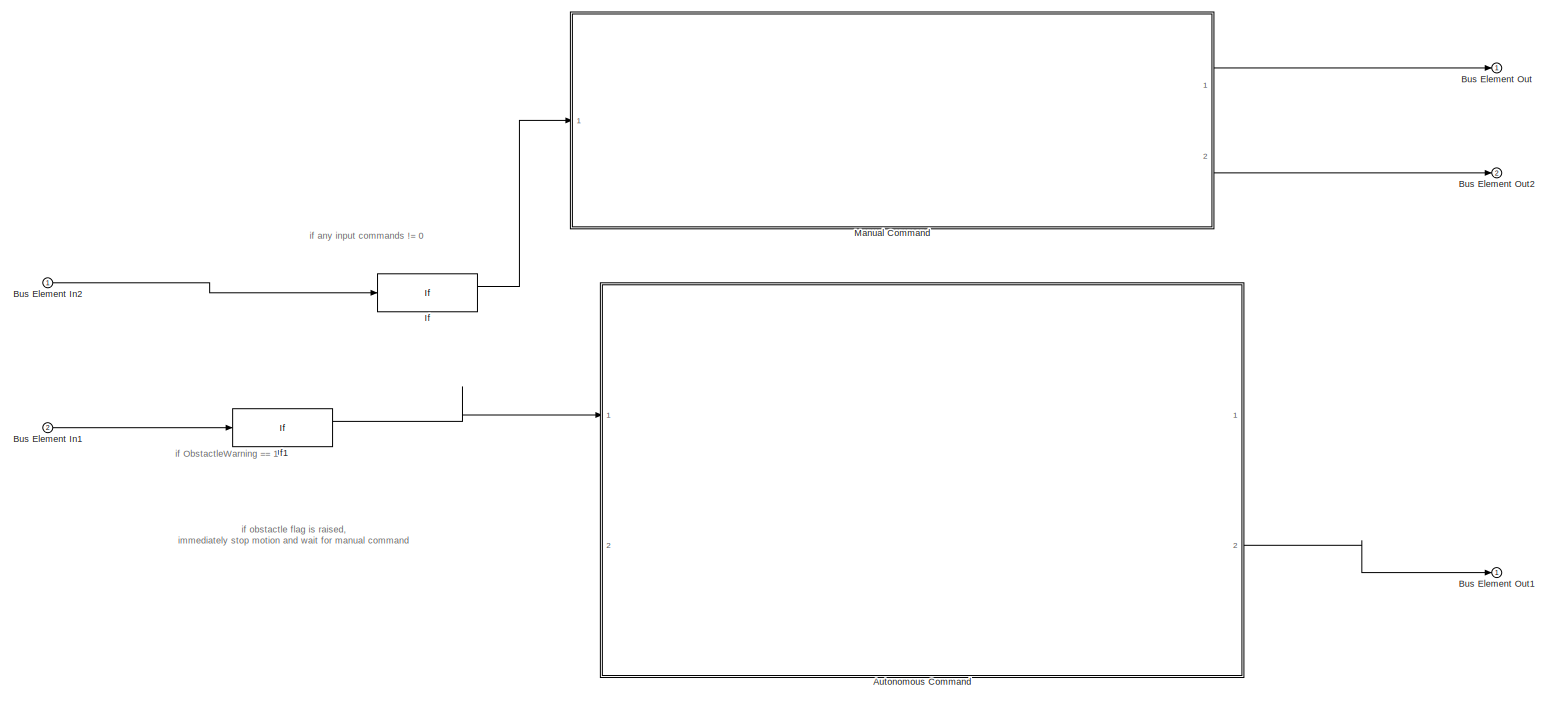
[diagram: root canvas - part 1/1, most of the canvas]
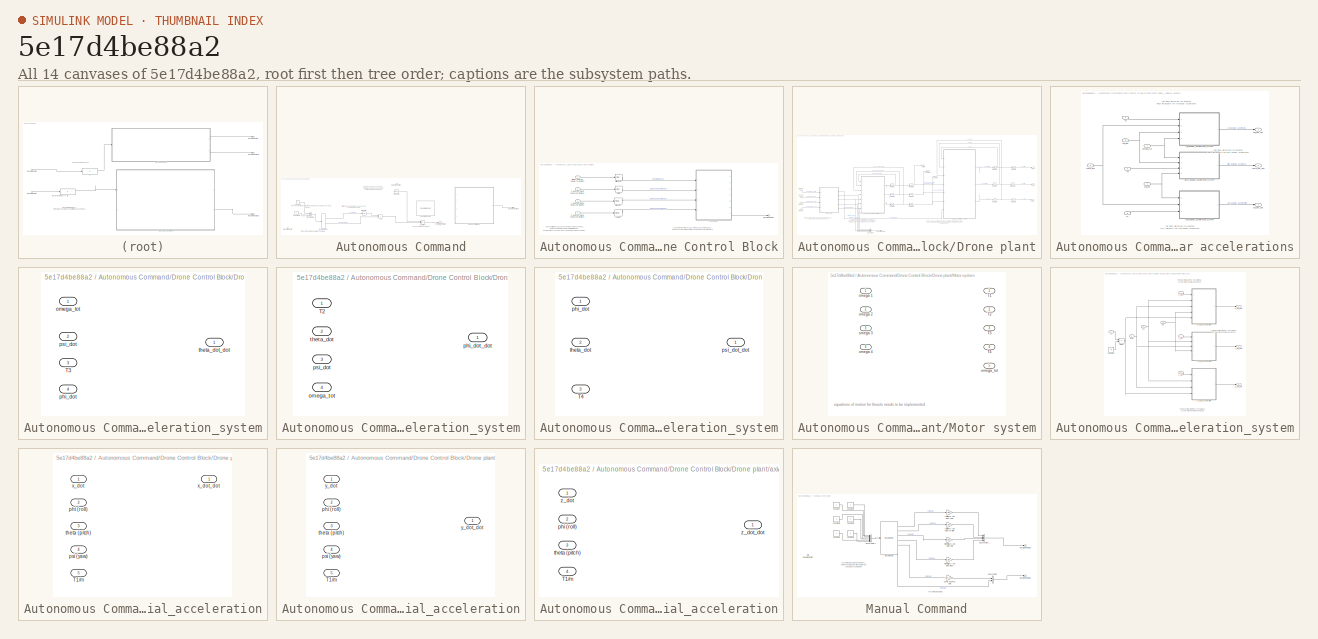
[diagram: thumbnail index - all 14 canvases of the model, root first then tree order]
MODEL slx_5e17d4be88a2
KIND model
CONFIG AbsTol = auto
CONFIG EnableMultiTasking = off
CONFIG FixedStep = auto
CONFIG MaxStep = auto
CONFIG MinStep = auto
CONFIG RelTol = 1e-3
CONFIG SampleTimeConstraint = Unconstrained
CONFIG SolverName = VariableStepAuto
CONFIG StartTime = 0.0
CONFIG StopTime = 10.0
BLOCK [SubSystem] Autonomous Command
  Ports = [2, 2]
  RequestExecContextInheritance = off
BLOCK [Sum] Autonomous Command/Add
  IconShape = rectangular
  Ports = [2, 1]
BLOCK [BusCreator] Autonomous Command/Bus Creator
  DisplayOption = bar
  InheritFromInputs = on
  Inputs = 2
  Ports = [2, 1]
BLOCK [Inport] Autonomous Command/Bus Element In
BLOCK [Inport] Autonomous Command/Bus Element In1
  Port = 2
BLOCK [Outport] Autonomous Command/Bus Element Out
  Port = 2
BLOCK [BusSelector] Autonomous Command/Bus Selector
  OutputSignals = velocity,geolocation
  Ports = [1, 2]
BLOCK [Reference] Autonomous Command/Calculate Range  REF=aerolibguid/Calculate
Range
  Ports = [2, 1]
  SourceBlock = aerolibguid/Calculate\nRange
  SourceProductBaseCode = AE
  SourceType = Calculate Range
BLOCK [Constant] Autonomous Command/Constant
BLOCK [Constant] Autonomous Command/Constant1
BLOCK [SubSystem] Autonomous Command/Drone Control Block
  Ports = [4, 1]
  RequestExecContextInheritance = off
BLOCK [Inport] Autonomous Command/Drone Control Block/Altitude_desired_signal input (coordinate?)
BLOCK [Outport] Autonomous Command/Drone Control Block/Bus Element Out
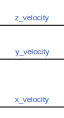
[diagram: Autonomous Command/Drone Control Block/Drone plant - part 1/3, top right region]
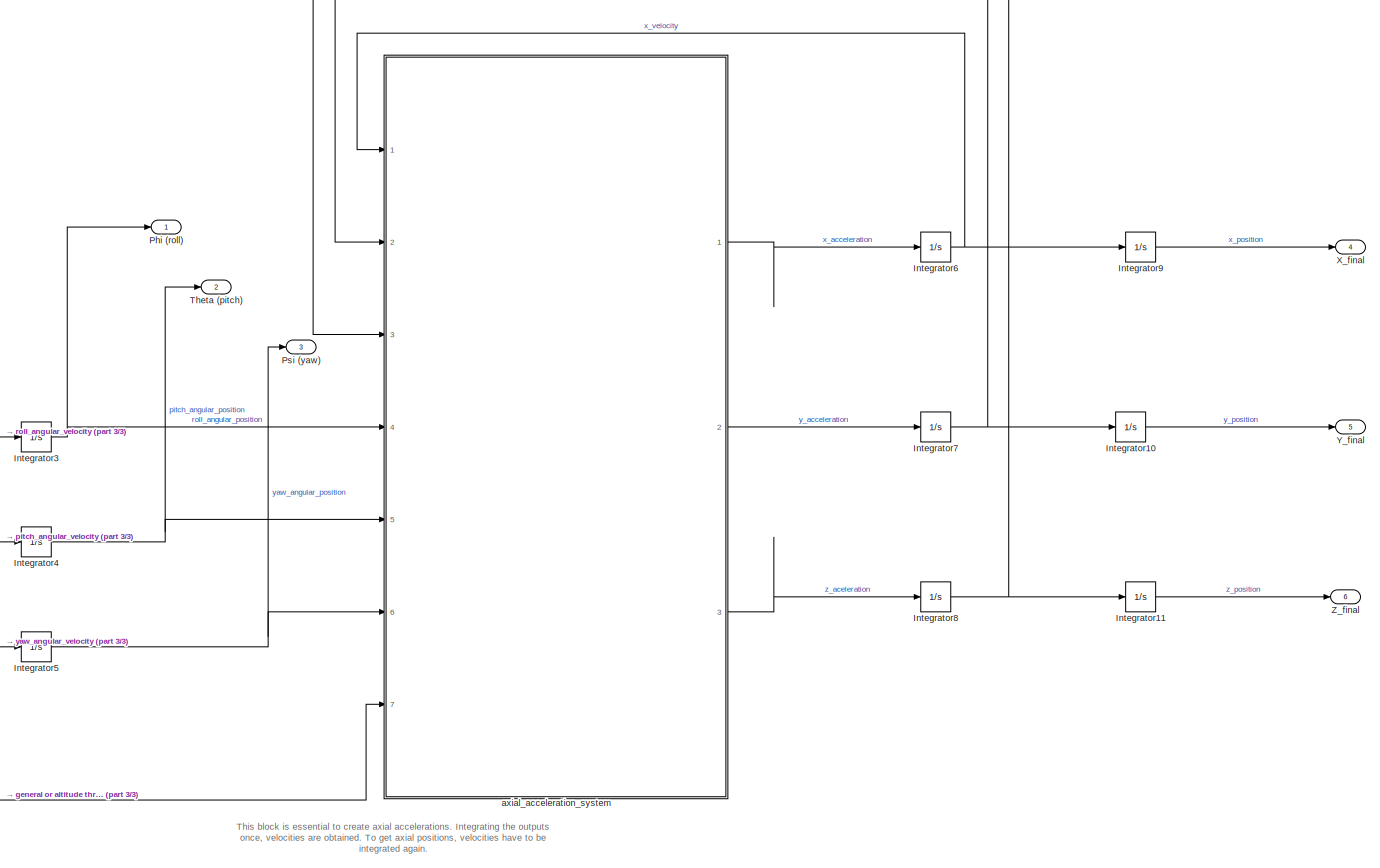
[diagram: Autonomous Command/Drone Control Block/Drone plant - part 2/3, right side, full height]
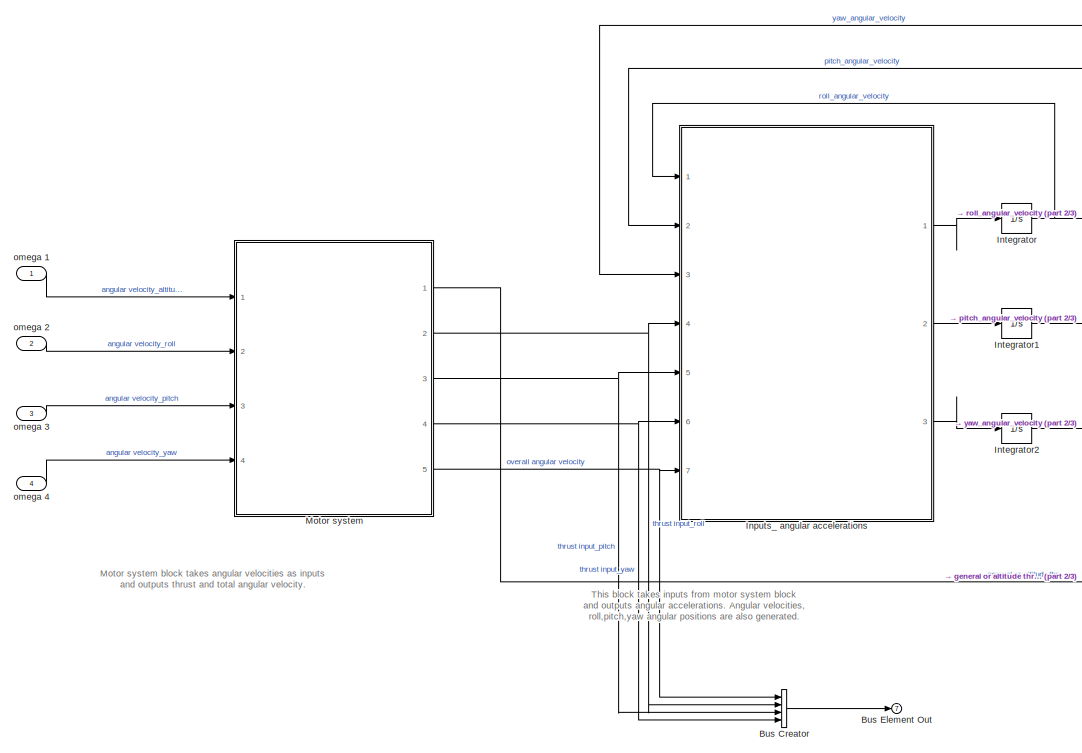
[diagram: Autonomous Command/Drone Control Block/Drone plant - part 3/3, middle left region]
BLOCK [SubSystem] Autonomous Command/Drone Control Block/Drone plant
  Ports = [4, 7]
  RequestExecContextInheritance = off
BLOCK [BusCreator] Autonomous Command/Drone Control Block/Drone plant/Bus Creator
  DisplayOption = bar
  InheritFromInputs = on
  Inputs = 4
  Ports = [4, 1]
BLOCK [Outport] Autonomous Command/Drone Control Block/Drone plant/Bus Element Out
  Port = 7
BLOCK [SubSystem] Autonomous Command/Drone Control Block/Drone plant/Inputs_ angular accelerations
  Ports = [7, 3]
  RequestExecContextInheritance = off
BLOCK [Inport] Autonomous Command/Drone Control Block/Drone plant/Inputs_ angular accelerations/T2
  Port = 4
BLOCK [Inport] Autonomous Command/Drone Control Block/Drone plant/Inputs_ angular accelerations/T3
  Port = 5
BLOCK [Inport] Autonomous Command/Drone Control Block/Drone plant/Inputs_ angular accelerations/T4
  Port = 6
BLOCK [Inport] Autonomous Command/Drone Control Block/Drone plant/Inputs_ angular accelerations/omega_tot
  Port = 7
BLOCK [Inport] Autonomous Command/Drone Control Block/Drone plant/Inputs_ angular accelerations/phi_dot
BLOCK [Outport] Autonomous Command/Drone Control Block/Drone plant/Inputs_ angular accelerations/phi_dot_dot
BLOCK [SubSystem] Autonomous Command/Drone Control Block/Drone plant/Inputs_ angular accelerations/pitch_angular_acceleration_system
  Ports = [4, 1]
  RequestExecContextInheritance = off
BLOCK [Inport] Autonomous Command/Drone Control Block/Drone plant/Inputs_ angular accelerations/pitch_angular_acceleration_system/T3
  Port = 3
BLOCK [Inport] Autonomous Command/Drone Control Block/Drone plant/Inputs_ angular accelerations/pitch_angular_acceleration_system/omega_tot
BLOCK [Inport] Autonomous Command/Drone Control Block/Drone plant/Inputs_ angular accelerations/pitch_angular_acceleration_system/phi_dot
  Port = 4
BLOCK [Inport] Autonomous Command/Drone Control Block/Drone plant/Inputs_ angular accelerations/pitch_angular_acceleration_system/psi_dot
  Port = 2
BLOCK [Outport] Autonomous Command/Drone Control Block/Drone plant/Inputs_ angular accelerations/pitch_angular_acceleration_system/theta_dot_dot
BLOCK [Inport] Autonomous Command/Drone Control Block/Drone plant/Inputs_ angular accelerations/psi_dot
  Port = 3
BLOCK [Outport] Autonomous Command/Drone Control Block/Drone plant/Inputs_ angular accelerations/psi_dot_dot
  Port = 3
BLOCK [SubSystem] Autonomous Command/Drone Control Block/Drone plant/Inputs_ angular accelerations/roll_angular_acceleration_system
  Ports = [4, 1]
  RequestExecContextInheritance = off
BLOCK [Inport] Autonomous Command/Drone Control Block/Drone plant/Inputs_ angular accelerations/roll_angular_acceleration_system/T2
BLOCK [Inport] Autonomous Command/Drone Control Block/Drone plant/Inputs_ angular accelerations/roll_angular_acceleration_system/omega_tot
  Port = 4
BLOCK [Outport] Autonomous Command/Drone Control Block/Drone plant/Inputs_ angular accelerations/roll_angular_acceleration_system/phi_dot_dot
BLOCK [Inport] Autonomous Command/Drone Control Block/Drone plant/Inputs_ angular accelerations/roll_angular_acceleration_system/psi_dot
  Port = 3
BLOCK [Inport] Autonomous Command/Drone Control Block/Drone plant/Inputs_ angular accelerations/roll_angular_acceleration_system/theta_dot
  Port = 2
BLOCK [Inport] Autonomous Command/Drone Control Block/Drone plant/Inputs_ angular accelerations/theta_dot
  Port = 2
BLOCK [Outport] Autonomous Command/Drone Control Block/Drone plant/Inputs_ angular accelerations/theta_dot_dot
  Port = 2
BLOCK [SubSystem] Autonomous Command/Drone Control Block/Drone plant/Inputs_ angular accelerations/yaw_angular_acceleration_system
  Ports = [3, 1]
  RequestExecContextInheritance = off
BLOCK [Inport] Autonomous Command/Drone Control Block/Drone plant/Inputs_ angular accelerations/yaw_angular_acceleration_system/T4
  Port = 3
BLOCK [Inport] Autonomous Command/Drone Control Block/Drone plant/Inputs_ angular accelerations/yaw_angular_acceleration_system/phi_dot
BLOCK [Outport] Autonomous Command/Drone Control Block/Drone plant/Inputs_ angular accelerations/yaw_angular_acceleration_system/psi_dot_dot
BLOCK [Inport] Autonomous Command/Drone Control Block/Drone plant/Inputs_ angular accelerations/yaw_angular_acceleration_system/theta_dot
  Port = 2
BLOCK [Integrator] Autonomous Command/Drone Control Block/Drone plant/Integrator
  Ports = [1, 1]
BLOCK [Integrator] Autonomous Command/Drone Control Block/Drone plant/Integrator1
  Ports = [1, 1]
BLOCK [Integrator] Autonomous Command/Drone Control Block/Drone plant/Integrator10
  Ports = [1, 1]
BLOCK [Integrator] Autonomous Command/Drone Control Block/Drone plant/Integrator11
  Ports = [1, 1]
BLOCK [Integrator] Autonomous Command/Drone Control Block/Drone plant/Integrator2
  Ports = [1, 1]
BLOCK [Integrator] Autonomous Command/Drone Control Block/Drone plant/Integrator3
  Ports = [1, 1]
BLOCK [Integrator] Autonomous Command/Drone Control Block/Drone plant/Integrator4
  Ports = [1, 1]
BLOCK [Integrator] Autonomous Command/Drone Control Block/Drone plant/Integrator5
  Ports = [1, 1]
BLOCK [Integrator] Autonomous Command/Drone Control Block/Drone plant/Integrator6
  Ports = [1, 1]
BLOCK [Integrator] Autonomous Command/Drone Control Block/Drone plant/Integrator7
  Ports = [1, 1]
BLOCK [Integrator] Autonomous Command/Drone Control Block/Drone plant/Integrator8
  Ports = [1, 1]
BLOCK [Integrator] Autonomous Command/Drone Control Block/Drone plant/Integrator9
  Ports = [1, 1]
BLOCK [SubSystem] Autonomous Command/Drone Control Block/Drone plant/Motor system
  Ports = [4, 5]
  RequestExecContextInheritance = off
BLOCK [Outport] Autonomous Command/Drone Control Block/Drone plant/Motor system/T1
BLOCK [Outport] Autonomous Command/Drone Control Block/Drone plant/Motor system/T2
  Port = 2
BLOCK [Outport] Autonomous Command/Drone Control Block/Drone plant/Motor system/T3
  Port = 3
BLOCK [Outport] Autonomous Command/Drone Control Block/Drone plant/Motor system/T4
  Port = 4
BLOCK [Inport] Autonomous Command/Drone Control Block/Drone plant/Motor system/omega 1
BLOCK [Inport] Autonomous Command/Drone Control Block/Drone plant/Motor system/omega 2
  Port = 2
BLOCK [Inport] Autonomous Command/Drone Control Block/Drone plant/Motor system/omega 3
  Port = 3
BLOCK [Inport] Autonomous Command/Drone Control Block/Drone plant/Motor system/omega 4
  Port = 4
BLOCK [Outport] Autonomous Command/Drone Control Block/Drone plant/Motor system/omega_tot
  Port = 5
BLOCK [Outport] Autonomous Command/Drone Control Block/Drone plant/Phi (roll)
BLOCK [Outport] Autonomous Command/Drone Control Block/Drone plant/Psi (yaw)
  Port = 3
BLOCK [Outport] Autonomous Command/Drone Control Block/Drone plant/Theta (pitch)
  Port = 2
BLOCK [Outport] Autonomous Command/Drone Control Block/Drone plant/X_final
  Port = 4
BLOCK [Outport] Autonomous Command/Drone Control Block/Drone plant/Y_final
  Port = 5
BLOCK [Outport] Autonomous Command/Drone Control Block/Drone plant/Z_final
  Port = 6
BLOCK [SubSystem] Autonomous Command/Drone Control Block/Drone plant/axial_acceleration_system
  Ports = [7, 3]
  RequestExecContextInheritance = off
BLOCK [Constant] Autonomous Command/Drone Control Block/Drone plant/axial_acceleration_system/Constant
  Value = m
BLOCK [Product] Autonomous Command/Drone Control Block/Drone plant/axial_acceleration_system/Divide
  Inputs = */
  Ports = [2, 1]
BLOCK [Inport] Autonomous Command/Drone Control Block/Drone plant/axial_acceleration_system/T1
  Port = 7
BLOCK [Inport] Autonomous Command/Drone Control Block/Drone plant/axial_acceleration_system/phi
  Port = 4
BLOCK [Inport] Autonomous Command/Drone Control Block/Drone plant/axial_acceleration_system/psi
  Port = 6
BLOCK [Inport] Autonomous Command/Drone Control Block/Drone plant/axial_acceleration_system/theta
  Port = 5
BLOCK [SubSystem] Autonomous Command/Drone Control Block/Drone plant/axial_acceleration_system/x_axial_acceleration
  Ports = [5, 1]
  RequestExecContextInheritance = off
BLOCK [Inport] Autonomous Command/Drone Control Block/Drone plant/axial_acceleration_system/x_axial_acceleration/T1//m
  Port = 5
BLOCK [Inport] Autonomous Command/Drone Control Block/Drone plant/axial_acceleration_system/x_axial_acceleration/phi (roll)
  Port = 2
BLOCK [Inport] Autonomous Command/Drone Control Block/Drone plant/axial_acceleration_system/x_axial_acceleration/psi (yaw)
  Port = 4
BLOCK [Inport] Autonomous Command/Drone Control Block/Drone plant/axial_acceleration_system/x_axial_acceleration/theta (pitch)
  Port = 3
BLOCK [Inport] Autonomous Command/Drone Control Block/Drone plant/axial_acceleration_system/x_axial_acceleration/x_dot
BLOCK [Outport] Autonomous Command/Drone Control Block/Drone plant/axial_acceleration_system/x_axial_acceleration/x_dot_dot
BLOCK [Inport] Autonomous Command/Drone Control Block/Drone plant/axial_acceleration_system/x_dot
BLOCK [Outport] Autonomous Command/Drone Control Block/Drone plant/axial_acceleration_system/x_dot_dot
BLOCK [SubSystem] Autonomous Command/Drone Control Block/Drone plant/axial_acceleration_system/y_axial_acceleration
  Ports = [5, 1]
  RequestExecContextInheritance = off
BLOCK [Inport] Autonomous Command/Drone Control Block/Drone plant/axial_acceleration_system/y_axial_acceleration/T1//m
  Port = 5
BLOCK [Inport] Autonomous Command/Drone Control Block/Drone plant/axial_acceleration_system/y_axial_acceleration/phi (roll)
  Port = 2
BLOCK [Inport] Autonomous Command/Drone Control Block/Drone plant/axial_acceleration_system/y_axial_acceleration/psi (yaw)
  Port = 4
BLOCK [Inport] Autonomous Command/Drone Control Block/Drone plant/axial_acceleration_system/y_axial_acceleration/theta (pitch)
  Port = 3
BLOCK [Inport] Autonomous Command/Drone Control Block/Drone plant/axial_acceleration_system/y_axial_acceleration/y_dot
BLOCK [Outport] Autonomous Command/Drone Control Block/Drone plant/axial_acceleration_system/y_axial_acceleration/y_dot_dot
BLOCK [Inport] Autonomous Command/Drone Control Block/Drone plant/axial_acceleration_system/y_dot
  Port = 2
BLOCK [Outport] Autonomous Command/Drone Control Block/Drone plant/axial_acceleration_system/y_dot_dot
  Port = 2
BLOCK [SubSystem] Autonomous Command/Drone Control Block/Drone plant/axial_acceleration_system/z_axial_acceleration
  Ports = [4, 1]
  RequestExecContextInheritance = off
BLOCK [Inport] Autonomous Command/Drone Control Block/Drone plant/axial_acceleration_system/z_axial_acceleration/T1//m
  Port = 4
BLOCK [Inport] Autonomous Command/Drone Control Block/Drone plant/axial_acceleration_system/z_axial_acceleration/phi (roll)
  Port = 2
BLOCK [Inport] Autonomous Command/Drone Control Block/Drone plant/axial_acceleration_system/z_axial_acceleration/theta (pitch)
  Port = 3
BLOCK [Inport] Autonomous Command/Drone Control Block/Drone plant/axial_acceleration_system/z_axial_acceleration/z_dot
BLOCK [Outport] Autonomous Command/Drone Control Block/Drone plant/axial_acceleration_system/z_axial_acceleration/z_dot_dot
BLOCK [Inport] Autonomous Command/Drone Control Block/Drone plant/axial_acceleration_system/z_dot
  Port = 3
BLOCK [Outport] Autonomous Command/Drone Control Block/Drone plant/axial_acceleration_system/z_dot_dot
  Port = 3
BLOCK [Inport] Autonomous Command/Drone Control Block/Drone plant/omega 1
BLOCK [Inport] Autonomous Command/Drone Control Block/Drone plant/omega 2
  Port = 2
BLOCK [Inport] Autonomous Command/Drone Control Block/Drone plant/omega 3
  Port = 3
BLOCK [Inport] Autonomous Command/Drone Control Block/Drone plant/omega 4
  Port = 4
BLOCK [Inport] Autonomous Command/Drone Control Block/X_desired_signal input (coordinate?)
  Port = 2
BLOCK [Inport] Autonomous Command/Drone Control Block/Y_desired_signal input (coordinate?)
  Port = 3
BLOCK [Inport] Autonomous Command/Drone Control Block/Z_desired_signal input (coordinate?)
  Port = 4
BLOCK [Reference] Autonomous Command/Drone Control Block/altitude PID  REF=pid_lib/PID Controller
  Ports = [1, 1]
  SourceBlock = pid_lib/PID Controller
  SourceProductBaseCode = SL
  SourceType = PID 1dof
BLOCK [Reference] Autonomous Command/Drone Control Block/pitch PID  REF=pid_lib/PID Controller
  Ports = [1, 1]
  SourceBlock = pid_lib/PID Controller
  SourceProductBaseCode = SL
  SourceType = PID 1dof
BLOCK [Reference] Autonomous Command/Drone Control Block/roll PID  REF=pid_lib/PID Controller
  Ports = [1, 1]
  SourceBlock = pid_lib/PID Controller
  SourceProductBaseCode = SL
  SourceType = PID 1dof
BLOCK [Reference] Autonomous Command/Drone Control Block/yaw PID  REF=pid_lib/PID Controller
  Ports = [1, 1]
  SourceBlock = pid_lib/PID Controller
  SourceProductBaseCode = SL
  SourceType = PID 1dof
BLOCK [Integrator] Autonomous Command/Integrator
  Ports = [1, 1]
BLOCK [Constant] Autonomous Command/Map Data
  Value = [x_final y_final z_final]
BLOCK [Sum] Autonomous Command/Subtract
  IconShape = rectangular
  Inputs = +-
  Ports = [2, 1]
BLOCK [Outport] Autonomous Command/Vector to Destination
BLOCK [Inport] Bus Element In1
  Port = 2
BLOCK [Inport] Bus Element In2
BLOCK [Outport] Bus Element Out
BLOCK [Outport] Bus Element Out1
BLOCK [Outport] Bus Element Out2
  Port = 2
BLOCK [If] If
  Ports = [1, 2]
BLOCK [If] If1
  IfExpression = u1 == 0
  Ports = [1, 2]
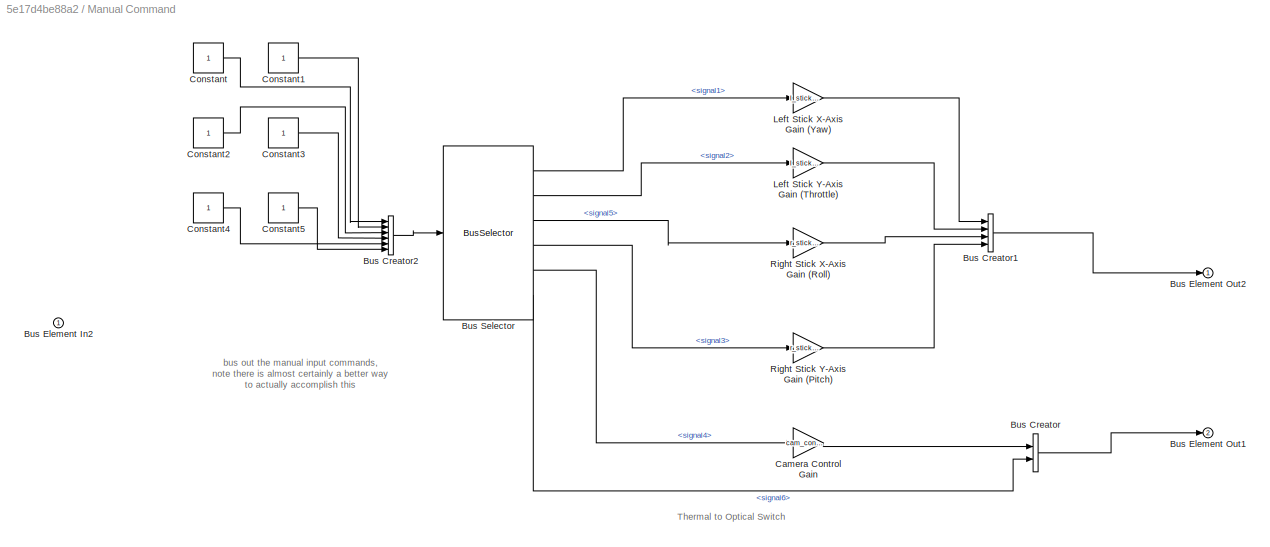
BLOCK [SubSystem] Manual Command
  Ports = [1, 2]
  RequestExecContextInheritance = off
BLOCK [BusCreator] Manual Command/Bus Creator
  DisplayOption = bar
  InheritFromInputs = on
  Inputs = 2
  Ports = [2, 1]
BLOCK [BusCreator] Manual Command/Bus Creator1
  DisplayOption = bar
  InheritFromInputs = on
  Inputs = 4
  Ports = [4, 1]
BLOCK [BusCreator] Manual Command/Bus Creator2
  DisplayOption = bar
  InheritFromInputs = on
  Inputs = 6
  Ports = [6, 1]
BLOCK [Inport] Manual Command/Bus Element In2
BLOCK [Outport] Manual Command/Bus Element Out1
  Port = 2
BLOCK [Outport] Manual Command/Bus Element Out2
BLOCK [BusSelector] Manual Command/Bus Selector
  OutputSignals = signal1,signal2,signal5,signal3,signal4,signal6
  Ports = [1, 6]
BLOCK [Gain] Manual Command/Camera Control Gain
  Gain = cam_control_gain
BLOCK [Constant] Manual Command/Constant
BLOCK [Constant] Manual Command/Constant1
BLOCK [Constant] Manual Command/Constant2
BLOCK [Constant] Manual Command/Constant3
BLOCK [Constant] Manual Command/Constant4
BLOCK [Constant] Manual Command/Constant5
BLOCK [Gain] Manual Command/Left Stick X-Axis Gain (Yaw)
  Gain = l_stick_x_gain
BLOCK [Gain] Manual Command/Left Stick Y-Axis Gain (Throttle)
  Gain = l_stick_y_gain
BLOCK [Gain] Manual Command/Right Stick X-Axis Gain (Roll)
  Gain = r_stick_x_gain
BLOCK [Gain] Manual Command/Right Stick Y-Axis Gain (Pitch)
  Gain = r_stick_y_gain
ANNOTATION (root): if ObstactleWarning == 1
ANNOTATION (root): if any input commands != 0
ANNOTATION (root): if obstactle flag is raised, immediately stop motion and wait for manual command
ANNOTATION Autonomous Command: attitude may be required based on how velocity is measured
ANNOTATION Autonomous Command: finds exact current position from sampled geolocation and velocity
ANNOTATION Autonomous Command: finds vector to the destination
ANNOTATION Autonomous Command: for now have this as a set value, in future these values should be edited via Input Commands
ANNOTATION Autonomous Command: this is not required if sample time is negligible
ANNOTATION Autonomous Command/Drone Control Block: Desired altitude,x,y and z coordinates are taken as input. Inputs should be taken in form of digital signals, from a joystick or keyboard, or probably in form of coordinates.
ANNOTATION Autonomous Command/Drone Control Block: Drone plant contains 3 subsystems such as motor block, angular acceleration input block and axial scceleration block
ANNOTATION Autonomous Command/Drone Control Block/Drone plant: Motor system block takes angular velocities as inputs and outputs thrust and total angular velocity.
ANNOTATION Autonomous Command/Drone Control Block/Drone plant: This block is essential to create axial accelerations. Integrating the outputs once, velocities are obtained. To get axial positions, velocities have to be integrated again.
ANNOTATION Autonomous Command/Drone Control Block/Drone plant: This block takes inputs from motor system block and outputs angular accelerations. Angular velocities, roll,pitch,yaw angular positions are also generated.
ANNOTATION Autonomous Command/Drone Control Block/Drone plant/Inputs_ angular accelerations: This block will contain the equation that calculates the yaw angular acceleration
ANNOTATION Autonomous Command/Drone Control Block/Drone plant/Inputs_ angular accelerations: This block will contain the equation which will calculate the roll angular acceleration
ANNOTATION Autonomous Command/Drone Control Block/Drone plant/Inputs_ angular accelerations: This blovk will contain the equation which will calculate the pitch angular acceleration
ANNOTATION Autonomous Command/Drone Control Block/Drone plant/Motor system: equations of motion for thrusts needs to be implemented
ANNOTATION Autonomous Command/Drone Control Block/Drone plant/axial_acceleration_system: This block will contain the z-translational acceleration equation developed
ANNOTATION Autonomous Command/Drone Control Block/Drone plant/axial_acceleration_system: This block will have the x-translational acceleration equation developed
ANNOTATION Autonomous Command/Drone Control Block/Drone plant/axial_acceleration_system: This blockwill contain the y-translational acceleration equation developed
ANNOTATION Manual Command: Thermal to Optical Switch
ANNOTATION Manual Command: bus out the manual input commands, note there is almost certainly a better way to actually accomplish this
LINE Autonomous Command/Add:1 -> Autonomous Command/Subtract:2
LINE Autonomous Command/Bus Creator:1 -> Autonomous Command/Bus Selector:1
LINE Autonomous Command/Bus Selector:1 -> Autonomous Command/Integrator:1
LINE Autonomous Command/Bus Selector:2 -> Autonomous Command/Add:2
LINE Autonomous Command/Constant1:1 -> Autonomous Command/Bus Creator:2
LINE Autonomous Command/Constant:1 -> Autonomous Command/Bus Creator:1
LINE Autonomous Command/Drone Control Block/Altitude_desired_signal input (coordinate?):1 -> Autonomous Command/Drone Control Block/altitude PID:1
LINE Autonomous Command/Drone Control Block/Drone plant/Bus Creator:1 -> Autonomous Command/Drone Control Block/Drone plant/Bus Element Out:1
LINE Autonomous Command/Drone Control Block/Drone plant/Inputs_ angular accelerations/T2:1 -> Autonomous Command/Drone Control Block/Drone plant/Inputs_ angular accelerations/roll_angular_acceleration_system:1
LINE Autonomous Command/Drone Control Block/Drone plant/Inputs_ angular accelerations/T3:1 -> Autonomous Command/Drone Control Block/Drone plant/Inputs_ angular accelerations/pitch_angular_acceleration_system:3
LINE Autonomous Command/Drone Control Block/Drone plant/Inputs_ angular accelerations/T4:1 -> Autonomous Command/Drone Control Block/Drone plant/Inputs_ angular accelerations/yaw_angular_acceleration_system:3
NET Autonomous Command/Drone Control Block/Drone plant/Inputs_ angular accelerations/omega_tot:1 -> Autonomous Command/Drone Control Block/Drone plant/Inputs_ angular accelerations/pitch_angular_acceleration_system:1, Autonomous Command/Drone Control Block/Drone plant/Inputs_ angular accelerations/roll_angular_acceleration_system:4
NET Autonomous Command/Drone Control Block/Drone plant/Inputs_ angular accelerations/phi_dot:1 -> Autonomous Command/Drone Control Block/Drone plant/Inputs_ angular accelerations/pitch_angular_acceleration_system:4, Autonomous Command/Drone Control Block/Drone plant/Inputs_ angular accelerations/yaw_angular_acceleration_system:1
LINE Autonomous Command/Drone Control Block/Drone plant/Inputs_ angular accelerations/pitch_angular_acceleration_system:1 -> Autonomous Command/Drone Control Block/Drone plant/Inputs_ angular accelerations/theta_dot_dot:1
NET Autonomous Command/Drone Control Block/Drone plant/Inputs_ angular accelerations/psi_dot:1 -> Autonomous Command/Drone Control Block/Drone plant/Inputs_ angular accelerations/pitch_angular_acceleration_system:2, Autonomous Command/Drone Control Block/Drone plant/Inputs_ angular accelerations/roll_angular_acceleration_system:3
LINE Autonomous Command/Drone Control Block/Drone plant/Inputs_ angular accelerations/roll_angular_acceleration_system:1 -> Autonomous Command/Drone Control Block/Drone plant/Inputs_ angular accelerations/phi_dot_dot:1
NET Autonomous Command/Drone Control Block/Drone plant/Inputs_ angular accelerations/theta_dot:1 -> Autonomous Command/Drone Control Block/Drone plant/Inputs_ angular accelerations/roll_angular_acceleration_system:2, Autonomous Command/Drone Control Block/Drone plant/Inputs_ angular accelerations/yaw_angular_acceleration_system:2
LINE Autonomous Command/Drone Control Block/Drone plant/Inputs_ angular accelerations/yaw_angular_acceleration_system:1 -> Autonomous Command/Drone Control Block/Drone plant/Inputs_ angular accelerations/psi_dot_dot:1
LINE Autonomous Command/Drone Control Block/Drone plant/Inputs_ angular accelerations:1 -> Autonomous Command/Drone Control Block/Drone plant/Integrator:1
LINE Autonomous Command/Drone Control Block/Drone plant/Inputs_ angular accelerations:2 -> Autonomous Command/Drone Control Block/Drone plant/Integrator1:1
LINE Autonomous Command/Drone Control Block/Drone plant/Inputs_ angular accelerations:3 -> Autonomous Command/Drone Control Block/Drone plant/Integrator2:1
LINE Autonomous Command/Drone Control Block/Drone plant/Integrator10:1 -> Autonomous Command/Drone Control Block/Drone plant/Y_final:1
LINE Autonomous Command/Drone Control Block/Drone plant/Integrator11:1 -> Autonomous Command/Drone Control Block/Drone plant/Z_final:1
NET Autonomous Command/Drone Control Block/Drone plant/Integrator1:1 -> Autonomous Command/Drone Control Block/Drone plant/Inputs_ angular accelerations:2, Autonomous Command/Drone Control Block/Drone plant/Integrator4:1
NET Autonomous Command/Drone Control Block/Drone plant/Integrator2:1 -> Autonomous Command/Drone Control Block/Drone plant/Inputs_ angular accelerations:3, Autonomous Command/Drone Control Block/Drone plant/Integrator5:1
NET Autonomous Command/Drone Control Block/Drone plant/Integrator3:1 -> Autonomous Command/Drone Control Block/Drone plant/Phi (roll):1, Autonomous Command/Drone Control Block/Drone plant/axial_acceleration_system:4
NET Autonomous Command/Drone Control Block/Drone plant/Integrator4:1 -> Autonomous Command/Drone Control Block/Drone plant/Theta (pitch):1, Autonomous Command/Drone Control Block/Drone plant/axial_acceleration_system:5
NET Autonomous Command/Drone Control Block/Drone plant/Integrator5:1 -> Autonomous Command/Drone Control Block/Drone plant/Psi (yaw):1, Autonomous Command/Drone Control Block/Drone plant/axial_acceleration_system:6
NET Autonomous Command/Drone Control Block/Drone plant/Integrator6:1 -> Autonomous Command/Drone Control Block/Drone plant/Integrator9:1, Autonomous Command/Drone Control Block/Drone plant/axial_acceleration_system:1
NET Autonomous Command/Drone Control Block/Drone plant/Integrator7:1 -> Autonomous Command/Drone Control Block/Drone plant/Integrator10:1, Autonomous Command/Drone Control Block/Drone plant/axial_acceleration_system:2
NET Autonomous Command/Drone Control Block/Drone plant/Integrator8:1 -> Autonomous Command/Drone Control Block/Drone plant/Integrator11:1, Autonomous Command/Drone Control Block/Drone plant/axial_acceleration_system:3
LINE Autonomous Command/Drone Control Block/Drone plant/Integrator9:1 -> Autonomous Command/Drone Control Block/Drone plant/X_final:1
NET Autonomous Command/Drone Control Block/Drone plant/Integrator:1 -> Autonomous Command/Drone Control Block/Drone plant/Inputs_ angular accelerations:1, Autonomous Command/Drone Control Block/Drone plant/Integrator3:1
LINE Autonomous Command/Drone Control Block/Drone plant/Motor system:1 -> Autonomous Command/Drone Control Block/Drone plant/axial_acceleration_system:7
NET Autonomous Command/Drone Control Block/Drone plant/Motor system:2 -> Autonomous Command/Drone Control Block/Drone plant/Bus Creator:2, Autonomous Command/Drone Control Block/Drone plant/Inputs_ angular accelerations:4
NET Autonomous Command/Drone Control Block/Drone plant/Motor system:3 -> Autonomous Command/Drone Control Block/Drone plant/Bus Creator:3, Autonomous Command/Drone Control Block/Drone plant/Inputs_ angular accelerations:5
NET Autonomous Command/Drone Control Block/Drone plant/Motor system:4 -> Autonomous Command/Drone Control Block/Drone plant/Bus Creator:4, Autonomous Command/Drone Control Block/Drone plant/Inputs_ angular accelerations:6
NET Autonomous Command/Drone Control Block/Drone plant/Motor system:5 -> Autonomous Command/Drone Control Block/Drone plant/Bus Creator:1, Autonomous Command/Drone Control Block/Drone plant/Inputs_ angular accelerations:7
LINE Autonomous Command/Drone Control Block/Drone plant/axial_acceleration_system/Constant:1 -> Autonomous Command/Drone Control Block/Drone plant/axial_acceleration_system/Divide:2
NET Autonomous Command/Drone Control Block/Drone plant/axial_acceleration_system/Divide:1 -> Autonomous Command/Drone Control Block/Drone plant/axial_acceleration_system/x_axial_acceleration:5, Autonomous Command/Drone Control Block/Drone plant/axial_acceleration_system/z_axial_acceleration:4
LINE Autonomous Command/Drone Control Block/Drone plant/axial_acceleration_system/T1:1 -> Autonomous Command/Drone Control Block/Drone plant/axial_acceleration_system/Divide:1
NET Autonomous Command/Drone Control Block/Drone plant/axial_acceleration_system/phi:1 -> Autonomous Command/Drone Control Block/Drone plant/axial_acceleration_system/x_axial_acceleration:2, Autonomous Command/Drone Control Block/Drone plant/axial_acceleration_system/y_axial_acceleration:2, Autonomous Command/Drone Control Block/Drone plant/axial_acceleration_system/z_axial_acceleration:2
NET Autonomous Command/Drone Control Block/Drone plant/axial_acceleration_system/psi:1 -> Autonomous Command/Drone Control Block/Drone plant/axial_acceleration_system/x_axial_acceleration:4, Autonomous Command/Drone Control Block/Drone plant/axial_acceleration_system/y_axial_acceleration:4
NET Autonomous Command/Drone Control Block/Drone plant/axial_acceleration_system/theta:1 -> Autonomous Command/Drone Control Block/Drone plant/axial_acceleration_system/x_axial_acceleration:3, Autonomous Command/Drone Control Block/Drone plant/axial_acceleration_system/y_axial_acceleration:3, Autonomous Command/Drone Control Block/Drone plant/axial_acceleration_system/z_axial_acceleration:3
LINE Autonomous Command/Drone Control Block/Drone plant/axial_acceleration_system/x_axial_acceleration:1 -> Autonomous Command/Drone Control Block/Drone plant/axial_acceleration_system/x_dot_dot:1
LINE Autonomous Command/Drone Control Block/Drone plant/axial_acceleration_system/x_dot:1 -> Autonomous Command/Drone Control Block/Drone plant/axial_acceleration_system/x_axial_acceleration:1
LINE Autonomous Command/Drone Control Block/Drone plant/axial_acceleration_system/y_axial_acceleration:1 -> Autonomous Command/Drone Control Block/Drone plant/axial_acceleration_system/y_dot_dot:1
LINE Autonomous Command/Drone Control Block/Drone plant/axial_acceleration_system/y_dot:1 -> Autonomous Command/Drone Control Block/Drone plant/axial_acceleration_system/y_axial_acceleration:1
LINE Autonomous Command/Drone Control Block/Drone plant/axial_acceleration_system/z_axial_acceleration:1 -> Autonomous Command/Drone Control Block/Drone plant/axial_acceleration_system/z_dot_dot:1
LINE Autonomous Command/Drone Control Block/Drone plant/axial_acceleration_system/z_dot:1 -> Autonomous Command/Drone Control Block/Drone plant/axial_acceleration_system/z_axial_acceleration:1
LINE Autonomous Command/Drone Control Block/Drone plant/axial_acceleration_system:1 -> Autonomous Command/Drone Control Block/Drone plant/Integrator6:1
LINE Autonomous Command/Drone Control Block/Drone plant/axial_acceleration_system:2 -> Autonomous Command/Drone Control Block/Drone plant/Integrator7:1
LINE Autonomous Command/Drone Control Block/Drone plant/axial_acceleration_system:3 -> Autonomous Command/Drone Control Block/Drone plant/Integrator8:1
LINE Autonomous Command/Drone Control Block/Drone plant/omega 1:1 -> Autonomous Command/Drone Control Block/Drone plant/Motor system:1
LINE Autonomous Command/Drone Control Block/Drone plant/omega 2:1 -> Autonomous Command/Drone Control Block/Drone plant/Motor system:2
LINE Autonomous Command/Drone Control Block/Drone plant/omega 3:1 -> Autonomous Command/Drone Control Block/Drone plant/Motor system:3
LINE Autonomous Command/Drone Control Block/Drone plant/omega 4:1 -> Autonomous Command/Drone Control Block/Drone plant/Motor system:4
LINE Autonomous Command/Drone Control Block/Drone plant:7 -> Autonomous Command/Drone Control Block/Bus Element Out:1
LINE Autonomous Command/Drone Control Block/X_desired_signal input (coordinate?):1 -> Autonomous Command/Drone Control Block/roll PID:1
LINE Autonomous Command/Drone Control Block/Y_desired_signal input (coordinate?):1 -> Autonomous Command/Drone Control Block/pitch PID:1
LINE Autonomous Command/Drone Control Block/Z_desired_signal input (coordinate?):1 -> Autonomous Command/Drone Control Block/yaw PID:1
LINE Autonomous Command/Drone Control Block/altitude PID:1 -> Autonomous Command/Drone Control Block/Drone plant:1
LINE Autonomous Command/Drone Control Block/pitch PID:1 -> Autonomous Command/Drone Control Block/Drone plant:3
LINE Autonomous Command/Drone Control Block/roll PID:1 -> Autonomous Command/Drone Control Block/Drone plant:2
LINE Autonomous Command/Drone Control Block/yaw PID:1 -> Autonomous Command/Drone Control Block/Drone plant:4
LINE Autonomous Command/Drone Control Block:1 -> Autonomous Command/Bus Element Out:1
LINE Autonomous Command/Integrator:1 -> Autonomous Command/Add:1
LINE Autonomous Command/Map Data:1 -> Autonomous Command/Subtract:1
LINE Autonomous Command/Subtract:1 -> Autonomous Command/Vector to Destination:1
LINE Autonomous Command:2 -> Bus Element Out1:1
LINE Bus Element In1:1 -> If1:1
LINE Bus Element In2:1 -> If:1
LINE If1:1 -> Autonomous Command:1
LINE If:1 -> Manual Command:1
LINE Manual Command/Bus Creator1:1 -> Manual Command/Bus Element Out2:1
LINE Manual Command/Bus Creator2:1 -> Manual Command/Bus Selector:1
LINE Manual Command/Bus Creator:1 -> Manual Command/Bus Element Out1:1
LINE Manual Command/Bus Selector:1 -> Manual Command/Left Stick X-Axis Gain (Yaw):1
LINE Manual Command/Bus Selector:2 -> Manual Command/Left Stick Y-Axis Gain (Throttle):1
LINE Manual Command/Bus Selector:3 -> Manual Command/Right Stick X-Axis Gain (Roll):1
LINE Manual Command/Bus Selector:4 -> Manual Command/Right Stick Y-Axis Gain (Pitch):1
LINE Manual Command/Bus Selector:5 -> Manual Command/Camera Control Gain:1
LINE Manual Command/Bus Selector:6 -> Manual Command/Bus Creator:2
LINE Manual Command/Camera Control Gain:1 -> Manual Command/Bus Creator:1
LINE Manual Command/Constant1:1 -> Manual Command/Bus Creator2:2
LINE Manual Command/Constant2:1 -> Manual Command/Bus Creator2:3
LINE Manual Command/Constant3:1 -> Manual Command/Bus Creator2:4
LINE Manual Command/Constant4:1 -> Manual Command/Bus Creator2:5
LINE Manual Command/Constant5:1 -> Manual Command/Bus Creator2:6
LINE Manual Command/Constant:1 -> Manual Command/Bus Creator2:1
LINE Manual Command/Left Stick X-Axis Gain (Yaw):1 -> Manual Command/Bus Creator1:1
LINE Manual Command/Left Stick Y-Axis Gain (Throttle):1 -> Manual Command/Bus Creator1:2
LINE Manual Command/Right Stick X-Axis Gain (Roll):1 -> Manual Command/Bus Creator1:3
LINE Manual Command/Right Stick Y-Axis Gain (Pitch):1 -> Manual Command/Bus Creator1:4
LINE Manual Command:1 -> Bus Element Out:1
LINE Manual Command:2 -> Bus Element Out2:1
note: NET lines group one-source signal fan-out (src -> all destinations, sorted); 1:1 wires keep LINE
